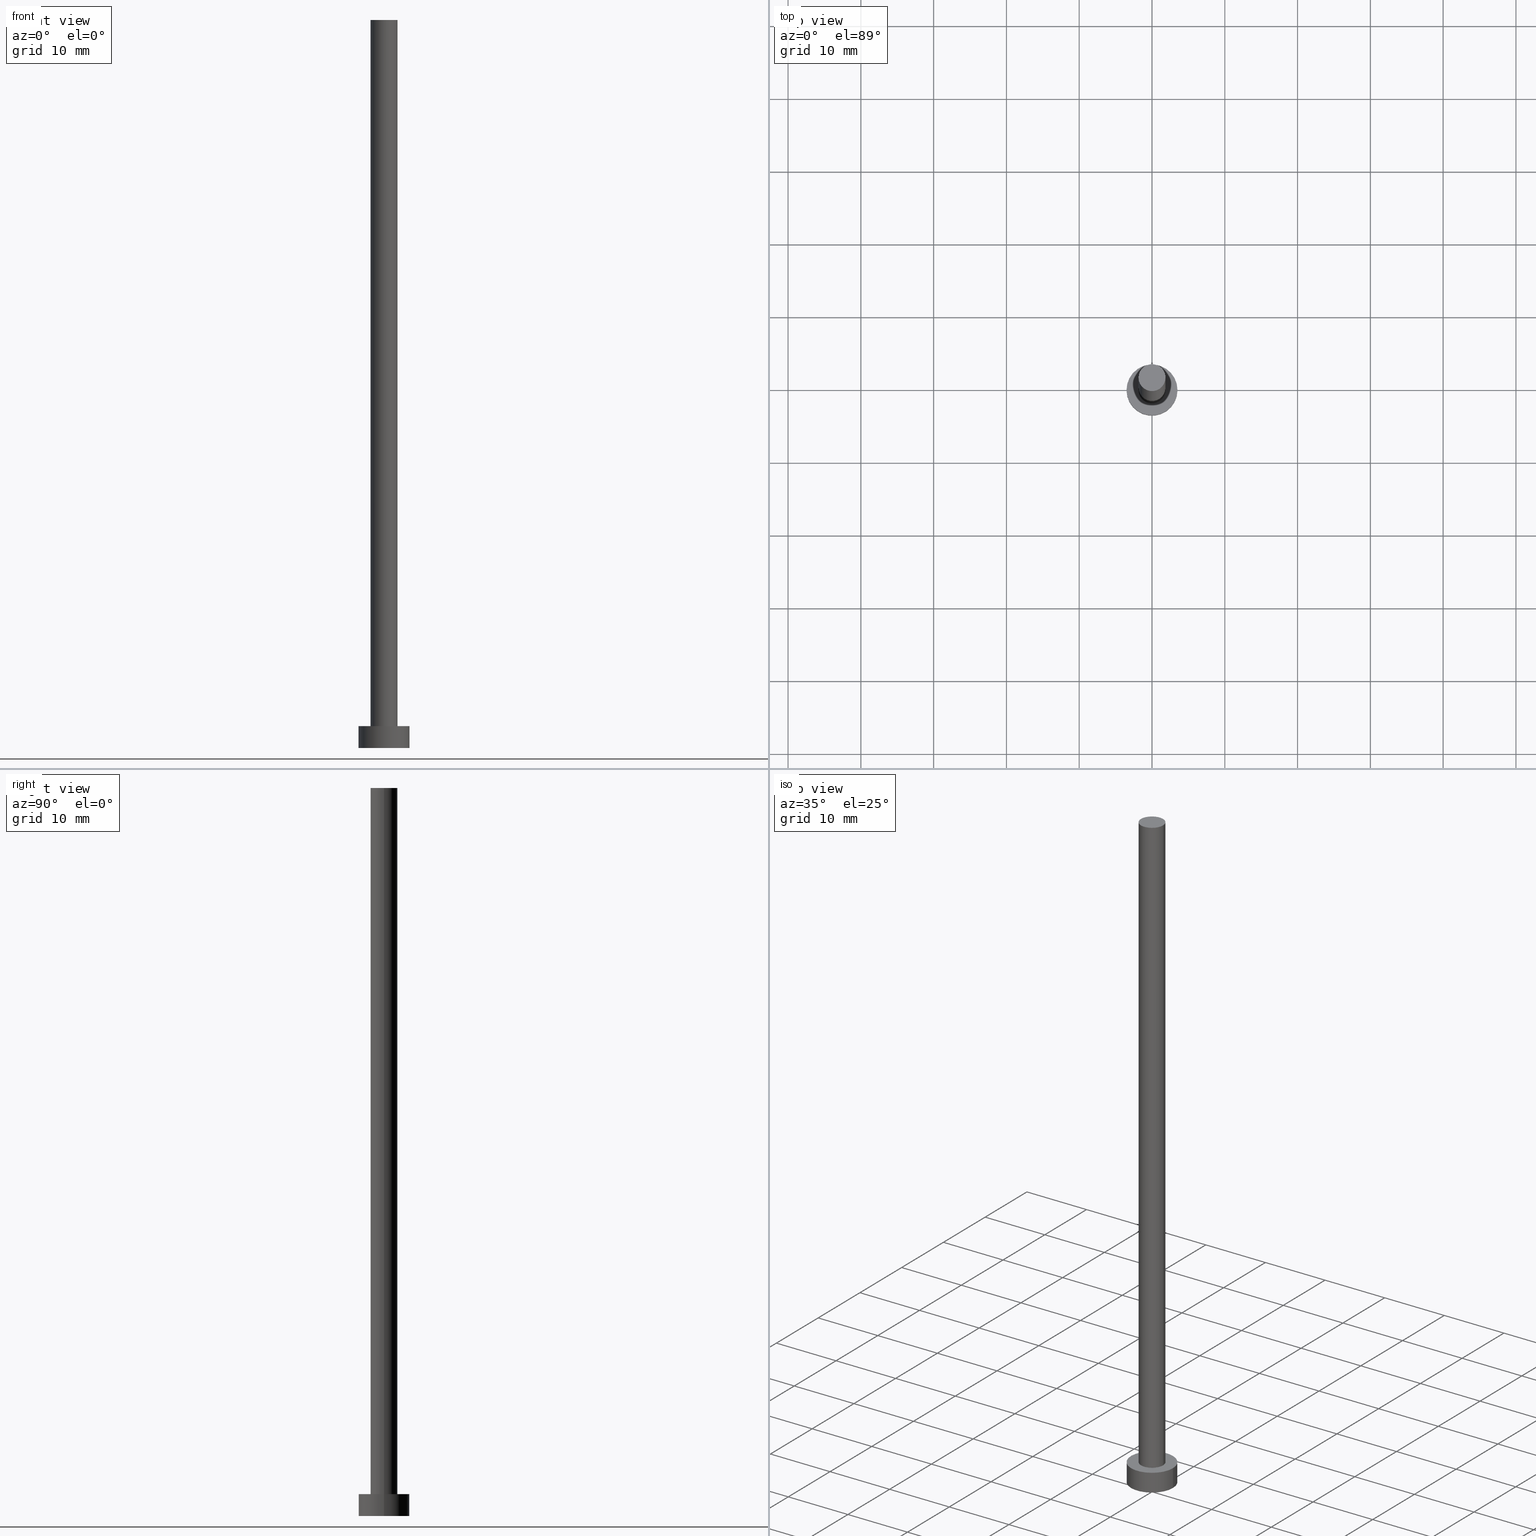
[diagram: canonical four-view strip — front | top / right | iso, engineering-drawing reading convention]
A machine part, canonical four-view strip (front | top / right | iso — engineering-drawing reading convention). The complete STEP part file that produces these views, byte-faithful:
ISO-10303-21;
HEADER;
FILE_DESCRIPTION (( 'STEP AP203' ),
    '1' );
FILE_NAME ('6613.STEP',
    '2026-02-11T15:51:28',
    ( '' ),
    ( '' ),
    'SwSTEP 2.0',
    'SolidWorks 2019',
    '' );
FILE_SCHEMA (( 'CONFIG_CONTROL_DESIGN' ));
ENDSEC;

DATA;
#1 = FACE_OUTER_BOUND ( 'NONE', #10, .T. ) ;
#2 = DIRECTION ( 'NONE',  ( 0.000000000000000000, 0.000000000000000000, 1.000000000000000000 ) ) ;
#3 = CIRCLE ( 'NONE', #46, 3.500000000000000444 ) ;
#4 = AXIS2_PLACEMENT_3D ( 'NONE', #226, #20, #150 ) ;
#5 = DIRECTION ( 'NONE',  ( 1.000000000000000000, 0.000000000000000000, -0.000000000000000000 ) ) ;
#6 = DIRECTION ( 'NONE',  ( -0.000000000000000000, -0.000000000000000000, -1.000000000000000000 ) ) ;
#7 = ORIENTED_EDGE ( 'NONE', *, *, #45, .T. ) ;
#8 = DIRECTION ( 'NONE',  ( 0.000000000000000000, 0.000000000000000000, 1.000000000000000000 ) ) ;
#9 = DIRECTION ( 'NONE',  ( 1.000000000000000000, 0.000000000000000000, 0.000000000000000000 ) ) ;
#10 = EDGE_LOOP ( 'NONE', ( #146, #230 ) ) ;
#11 = CIRCLE ( 'NONE', #82, 1.850000000000000089 ) ;
#12 = EDGE_CURVE ( 'NONE', #87, #62, #11, .T. ) ;
#13 = APPROVAL_PERSON_ORGANIZATION ( #220, #36, #241 ) ;
#14 = APPLICATION_PROTOCOL_DEFINITION ( 'international standard', 'config_control_design', 1994, #207 ) ;
#15 = DIRECTION ( 'NONE',  ( -0.000000000000000000, -0.000000000000000000, -1.000000000000000000 ) ) ;
#16 = DIRECTION ( 'NONE',  ( 0.000000000000000000, 0.000000000000000000, 1.000000000000000000 ) ) ;
#17 = CC_DESIGN_SECURITY_CLASSIFICATION ( #213, ( #228 ) ) ;
#18 = APPROVAL_STATUS ( 'not_yet_approved' ) ;
#19 = EDGE_CURVE ( 'NONE', #105, #112, #28, .T. ) ;
#20 = DIRECTION ( 'NONE',  ( -0.000000000000000000, -0.000000000000000000, -1.000000000000000000 ) ) ;
#21 = PERSON_AND_ORGANIZATION ( #161, #196 ) ;
#22 = PRODUCT_DEFINITION_SHAPE ( 'NONE', 'NONE',  #246 ) ;
#23 = CARTESIAN_POINT ( 'NONE',  ( 0.000000000000000000, 0.000000000000000000, 3.000000000000000000 ) ) ;
#24 = UNCERTAINTY_MEASURE_WITH_UNIT (LENGTH_MEASURE( 1.000000000000000082E-05 ), #215, 'distance_accuracy_value', 'NONE');
#25 = EDGE_LOOP ( 'NONE', ( #29, #114, #102, #149 ) ) ;
#26 = DIRECTION ( 'NONE',  ( 0.000000000000000000, 0.000000000000000000, 1.000000000000000000 ) ) ;
#27 = ORIENTED_EDGE ( 'NONE', *, *, #38, .F. ) ;
#28 = CIRCLE ( 'NONE', #221, 1.850000000000000089 ) ;
#29 = ORIENTED_EDGE ( 'NONE', *, *, #45, .F. ) ;
#30 = CIRCLE ( 'NONE', #69, 3.500000000000000444 ) ;
#31 = EDGE_LOOP ( 'NONE', ( #129, #187, #91, #164 ) ) ;
#32 = AXIS2_PLACEMENT_3D ( 'NONE', #66, #186, #169 ) ;
#33 = CYLINDRICAL_SURFACE ( 'NONE', #139, 1.850000000000000089 ) ;
#34 = PERSON_AND_ORGANIZATION ( #161, #196 ) ;
#35 = LINE ( 'NONE', #225, #115 ) ;
#36 = APPROVAL ( #18, 'NEUR�EN�' ) ;
#37 = COORDINATED_UNIVERSAL_TIME_OFFSET ( 1, 0, .AHEAD. ) ;
#38 = EDGE_CURVE ( 'NONE', #151, #44, #93, .T. ) ;
#39 = AXIS2_PLACEMENT_3D ( 'NONE', #48, #103, #205 ) ;
#40 = CYLINDRICAL_SURFACE ( 'NONE', #4, 3.500000000000000444 ) ;
#41 = DATE_AND_TIME ( #247, #214 ) ;
#42 = DIRECTION ( 'NONE',  ( 1.000000000000000000, 0.000000000000000000, 0.000000000000000000 ) ) ;
#43 = DIRECTION ( 'NONE',  ( -0.000000000000000000, -0.000000000000000000, -1.000000000000000000 ) ) ;
#44 = VERTEX_POINT ( 'NONE', #67 ) ;
#45 = EDGE_CURVE ( 'NONE', #151, #244, #60, .T. ) ;
#46 = AXIS2_PLACEMENT_3D ( 'NONE', #136, #96, #95 ) ;
#47 = CARTESIAN_POINT ( 'NONE',  ( 0.000000000000000000, 0.000000000000000000, 3.000000000000000000 ) ) ;
#48 = CARTESIAN_POINT ( 'NONE',  ( 0.000000000000000000, 0.000000000000000000, 3.000000000000000000 ) ) ;
#49 = ORIENTED_EDGE ( 'NONE', *, *, #19, .F. ) ;
#50 = EDGE_LOOP ( 'NONE', ( #88, #49 ) ) ;
#51 = AXIS2_PLACEMENT_3D ( 'NONE', #200, #16, #157 ) ;
#52 = ADVANCED_FACE ( 'NONE', ( #165 ), #40, .T. ) ;
#53 = CARTESIAN_POINT ( 'NONE',  ( 0.000000000000000000, 0.000000000000000000, 0.000000000000000000 ) ) ;
#54 = APPROVAL_PERSON_ORGANIZATION ( #140, #188, #73 ) ;
#55 = CLOSED_SHELL ( 'NONE', ( #131, #70, #52, #109, #234, #142, #191 ) ) ;
#56 = CARTESIAN_POINT ( 'NONE',  ( -3.500000000000000444, 0.000000000000000000, 3.000000000000000000 ) ) ;
#57 = CC_DESIGN_DATE_AND_TIME_ASSIGNMENT ( #120, #222, ( #213 ) ) ;
#58 = LOCAL_TIME ( 16, 51, 28.00000000000000000, #83 ) ;
#59 = PERSON_AND_ORGANIZATION ( #161, #196 ) ;
#60 = LINE ( 'NONE', #144, #179 ) ;
#61 = LOCAL_TIME ( 16, 51, 28.00000000000000000, #252 ) ;
#62 = VERTEX_POINT ( 'NONE', #122 ) ;
#63 = APPROVAL_DATE_TIME ( #41, #188 ) ;
#64 = ORIENTED_EDGE ( 'NONE', *, *, #133, .F. ) ;
#65 = DIRECTION ( 'NONE',  ( -0.000000000000000000, -0.000000000000000000, -1.000000000000000000 ) ) ;
#66 = CARTESIAN_POINT ( 'NONE',  ( 0.000000000000000000, 0.000000000000000000, 3.000000000000000000 ) ) ;
#67 = CARTESIAN_POINT ( 'NONE',  ( -3.500000000000000444, 0.000000000000000000, 3.000000000000000000 ) ) ;
#68 = ORIENTED_EDGE ( 'NONE', *, *, #194, .T. ) ;
#69 = AXIS2_PLACEMENT_3D ( 'NONE', #47, #168, #229 ) ;
#70 = ADVANCED_FACE ( 'NONE', ( #206 ), #126, .T. ) ;
#71 = ORIENTED_EDGE ( 'NONE', *, *, #12, .T. ) ;
#72 = MANIFOLD_SOLID_BREP ( 'P�idat vysunut�m3', #55 ) ;
#73 = APPROVAL_ROLE ( '' ) ;
#74 = DATE_AND_TIME ( #248, #176 ) ;
#75 = CARTESIAN_POINT ( 'NONE',  ( -3.500000000000000444, 0.000000000000000000, 0.000000000000000000 ) ) ;
#76 = AXIS2_PLACEMENT_3D ( 'NONE', #110, #185, #174 ) ;
#77 = CARTESIAN_POINT ( 'NONE',  ( 0.000000000000000000, 0.000000000000000000, 100.0000000000000000 ) ) ;
#78 = PERSON_AND_ORGANIZATION_ROLE ( 'creator' ) ;
#79 = CC_DESIGN_PERSON_AND_ORGANIZATION_ASSIGNMENT ( #97, #78, ( #228 ) ) ;
#80 = DATE_AND_TIME ( #98, #204 ) ;
#81 = CC_DESIGN_PERSON_AND_ORGANIZATION_ASSIGNMENT ( #132, #198, ( #124 ) ) ;
#82 = AXIS2_PLACEMENT_3D ( 'NONE', #116, #193, #190 ) ;
#83 = COORDINATED_UNIVERSAL_TIME_OFFSET ( 1, 0, .AHEAD. ) ;
#84 = PLANE ( 'NONE',  #171 ) ;
#85 = CARTESIAN_POINT ( 'NONE',  ( -1.850000000000000089, 0.000000000000000000, 3.000000000000000000 ) ) ;
#86 = CARTESIAN_POINT ( 'NONE',  ( 3.500000000000000444, 4.286263797015737088E-16, 0.000000000000000000 ) ) ;
#87 = VERTEX_POINT ( 'NONE', #208 ) ;
#88 = ORIENTED_EDGE ( 'NONE', *, *, #104, .F. ) ;
#89 = CARTESIAN_POINT ( 'NONE',  ( 0.000000000000000000, 0.000000000000000000, 3.000000000000000000 ) ) ;
#90 = CC_DESIGN_APPROVAL ( #36, ( #228 ) ) ;
#91 = ORIENTED_EDGE ( 'NONE', *, *, #19, .T. ) ;
#92 = AXIS2_PLACEMENT_3D ( 'NONE', #209, #26, #5 ) ;
#93 = CIRCLE ( 'NONE', #32, 3.500000000000000444 ) ;
#94 =( NAMED_UNIT ( * ) PLANE_ANGLE_UNIT ( ) SI_UNIT ( $, .RADIAN. ) );
#95 = DIRECTION ( 'NONE',  ( 1.000000000000000000, 0.000000000000000000, 0.000000000000000000 ) ) ;
#96 = DIRECTION ( 'NONE',  ( 0.000000000000000000, 0.000000000000000000, 1.000000000000000000 ) ) ;
#97 = PERSON_AND_ORGANIZATION ( #161, #196 ) ;
#98 = CALENDAR_DATE ( 2026, 11, 2 ) ;
#99 = PERSON_AND_ORGANIZATION_ROLE ( 'classification_officer' ) ;
#100 = SECURITY_CLASSIFICATION_LEVEL ( 'unclassified' ) ;
#101 = CARTESIAN_POINT ( 'NONE',  ( 1.850000000000000089, 2.265596578422602607E-16, 3.000000000000000000 ) ) ;
#102 = ORIENTED_EDGE ( 'NONE', *, *, #117, .T. ) ;
#103 = DIRECTION ( 'NONE',  ( 0.000000000000000000, 0.000000000000000000, 1.000000000000000000 ) ) ;
#104 = EDGE_CURVE ( 'NONE', #112, #105, #178, .T. ) ;
#105 = VERTEX_POINT ( 'NONE', #101 ) ;
#106 = PLANE ( 'NONE',  #92 ) ;
#107 = CC_DESIGN_APPROVAL ( #218, ( #246 ) ) ;
#108 = ORIENTED_EDGE ( 'NONE', *, *, #104, .T. ) ;
#109 = ADVANCED_FACE ( 'NONE', ( #180, #1 ), #84, .T. ) ;
#110 = CARTESIAN_POINT ( 'NONE',  ( 0.000000000000000000, 0.000000000000000000, 0.000000000000000000 ) ) ;
#111 = DIRECTION ( 'NONE',  ( 0.000000000000000000, 0.000000000000000000, 1.000000000000000000 ) ) ;
#112 = VERTEX_POINT ( 'NONE', #85 ) ;
#113 = FACE_OUTER_BOUND ( 'NONE', #181, .T. ) ;
#114 = ORIENTED_EDGE ( 'NONE', *, *, #223, .F. ) ;
#115 = VECTOR ( 'NONE', #65, 1000.000000000000000 ) ;
#116 = CARTESIAN_POINT ( 'NONE',  ( 0.000000000000000000, 0.000000000000000000, 100.0000000000000000 ) ) ;
#117 = EDGE_CURVE ( 'NONE', #44, #166, #243, .T. ) ;
#118 = CC_DESIGN_PERSON_AND_ORGANIZATION_ASSIGNMENT ( #59, #141, ( #228 ) ) ;
#119 = DIRECTION ( 'NONE',  ( -1.000000000000000000, 0.000000000000000000, 0.000000000000000000 ) ) ;
#120 = DATE_AND_TIME ( #159, #58 ) ;
#121 =( GEOMETRIC_REPRESENTATION_CONTEXT ( 3 ) GLOBAL_UNCERTAINTY_ASSIGNED_CONTEXT ( ( #24 ) ) GLOBAL_UNIT_ASSIGNED_CONTEXT ( ( #215, #94, #250 ) ) REPRESENTATION_CONTEXT ( 'NONE', 'WORKASPACE' ) );
#122 = CARTESIAN_POINT ( 'NONE',  ( 1.850000000000000089, 2.265596578422602607E-16, 100.0000000000000000 ) ) ;
#123 = CC_DESIGN_PERSON_AND_ORGANIZATION_ASSIGNMENT ( #236, #175, ( #246 ) ) ;
#124 = PRODUCT ( '6613', '6613', '', ( #134 ) ) ;
#125 = CC_DESIGN_PERSON_AND_ORGANIZATION_ASSIGNMENT ( #21, #99, ( #213 ) ) ;
#126 = CYLINDRICAL_SURFACE ( 'NONE', #155, 3.500000000000000444 ) ;
#127 = DIRECTION ( 'NONE',  ( -1.000000000000000000, 0.000000000000000000, 0.000000000000000000 ) ) ;
#128 = CARTESIAN_POINT ( 'NONE',  ( 0.000000000000000000, 0.000000000000000000, 100.0000000000000000 ) ) ;
#129 = ORIENTED_EDGE ( 'NONE', *, *, #227, .F. ) ;
#130 = CIRCLE ( 'NONE', #76, 3.500000000000000444 ) ;
#131 = ADVANCED_FACE ( 'NONE', ( #135 ), #216, .T. ) ;
#132 = PERSON_AND_ORGANIZATION ( #161, #196 ) ;
#133 = EDGE_CURVE ( 'NONE', #244, #166, #3, .T. ) ;
#134 = MECHANICAL_CONTEXT ( 'NONE', #217, 'mechanical' ) ;
#135 = FACE_OUTER_BOUND ( 'NONE', #31, .T. ) ;
#136 = CARTESIAN_POINT ( 'NONE',  ( 0.000000000000000000, 0.000000000000000000, 0.000000000000000000 ) ) ;
#137 = ADVANCED_BREP_SHAPE_REPRESENTATION ( '6613', ( #72, #158 ), #121 ) ;
#138 = DATE_AND_TIME ( #154, #61 ) ;
#139 = AXIS2_PLACEMENT_3D ( 'NONE', #77, #177, #253 ) ;
#140 = PERSON_AND_ORGANIZATION ( #161, #196 ) ;
#141 = PERSON_AND_ORGANIZATION_ROLE ( 'design_supplier' ) ;
#142 = ADVANCED_FACE ( 'NONE', ( #239 ), #33, .T. ) ;
#143 = DESIGN_CONTEXT ( 'detailed design', #207, 'design' ) ;
#144 = CARTESIAN_POINT ( 'NONE',  ( 3.500000000000000444, 4.286263797015737088E-16, 3.000000000000000000 ) ) ;
#145 = ORIENTED_EDGE ( 'NONE', *, *, #227, .T. ) ;
#146 = ORIENTED_EDGE ( 'NONE', *, *, #223, .T. ) ;
#147 = LINE ( 'NONE', #183, #237 ) ;
#148 = ORIENTED_EDGE ( 'NONE', *, *, #233, .F. ) ;
#149 = ORIENTED_EDGE ( 'NONE', *, *, #249, .T. ) ;
#150 = DIRECTION ( 'NONE',  ( -1.000000000000000000, 0.000000000000000000, 0.000000000000000000 ) ) ;
#151 = VERTEX_POINT ( 'NONE', #255 ) ;
#152 = APPROVAL_DATE_TIME ( #74, #218 ) ;
#153 = DIRECTION ( 'NONE',  ( 1.000000000000000000, 0.000000000000000000, 0.000000000000000000 ) ) ;
#154 = CALENDAR_DATE ( 2026, 11, 2 ) ;
#155 = AXIS2_PLACEMENT_3D ( 'NONE', #23, #43, #127 ) ;
#156 = PLANE ( 'NONE',  #51 ) ;
#157 = DIRECTION ( 'NONE',  ( 1.000000000000000000, 0.000000000000000000, -0.000000000000000000 ) ) ;
#158 = AXIS2_PLACEMENT_3D ( 'NONE', #53, #238, #153 ) ;
#159 = CALENDAR_DATE ( 2026, 11, 2 ) ;
#160 = CARTESIAN_POINT ( 'NONE',  ( 0.000000000000000000, 0.000000000000000000, 3.000000000000000000 ) ) ;
#161 = PERSON ( 'NEUR�EN�', 'NEUR�EN�', 'NEUR�EN�', ('NEUR�EN�'), ('NEUR�EN�'), ('NEUR�EN�') ) ;
#162 = VECTOR ( 'NONE', #199, 1000.000000000000000 ) ;
#163 = DIRECTION ( 'NONE',  ( 1.000000000000000000, 0.000000000000000000, -0.000000000000000000 ) ) ;
#164 = ORIENTED_EDGE ( 'NONE', *, *, #194, .F. ) ;
#165 = FACE_OUTER_BOUND ( 'NONE', #25, .T. ) ;
#166 = VERTEX_POINT ( 'NONE', #75 ) ;
#167 = SHAPE_DEFINITION_REPRESENTATION ( #22, #137 ) ;
#168 = DIRECTION ( 'NONE',  ( 0.000000000000000000, 0.000000000000000000, 1.000000000000000000 ) ) ;
#169 = DIRECTION ( 'NONE',  ( 1.000000000000000000, 0.000000000000000000, 0.000000000000000000 ) ) ;
#170 = ORIENTED_EDGE ( 'NONE', *, *, #249, .F. ) ;
#171 = AXIS2_PLACEMENT_3D ( 'NONE', #160, #2, #163 ) ;
#172 = COORDINATED_UNIVERSAL_TIME_OFFSET ( 1, 0, .AHEAD. ) ;
#173 = APPROVAL_ROLE ( '' ) ;
#174 = DIRECTION ( 'NONE',  ( 1.000000000000000000, 0.000000000000000000, 0.000000000000000000 ) ) ;
#175 = PERSON_AND_ORGANIZATION_ROLE ( 'creator' ) ;
#176 = LOCAL_TIME ( 16, 51, 28.00000000000000000, #197 ) ;
#177 = DIRECTION ( 'NONE',  ( -0.000000000000000000, -0.000000000000000000, -1.000000000000000000 ) ) ;
#178 = CIRCLE ( 'NONE', #39, 1.850000000000000089 ) ;
#179 = VECTOR ( 'NONE', #6, 1000.000000000000000 ) ;
#180 = FACE_BOUND ( 'NONE', #50, .T. ) ;
#181 = EDGE_LOOP ( 'NONE', ( #170, #64 ) ) ;
#182 = AXIS2_PLACEMENT_3D ( 'NONE', #128, #8, #42 ) ;
#183 = CARTESIAN_POINT ( 'NONE',  ( 1.850000000000000089, 2.265596578422602607E-16, 100.0000000000000000 ) ) ;
#184 = ORIENTED_EDGE ( 'NONE', *, *, #117, .F. ) ;
#185 = DIRECTION ( 'NONE',  ( 0.000000000000000000, 0.000000000000000000, 1.000000000000000000 ) ) ;
#186 = DIRECTION ( 'NONE',  ( 0.000000000000000000, 0.000000000000000000, 1.000000000000000000 ) ) ;
#187 = ORIENTED_EDGE ( 'NONE', *, *, #233, .T. ) ;
#188 = APPROVAL ( #224, 'NEUR�EN�' ) ;
#189 = ORIENTED_EDGE ( 'NONE', *, *, #133, .T. ) ;
#190 = DIRECTION ( 'NONE',  ( 1.000000000000000000, 0.000000000000000000, 0.000000000000000000 ) ) ;
#191 = ADVANCED_FACE ( 'NONE', ( #219 ), #156, .T. ) ;
#192 = CIRCLE ( 'NONE', #182, 1.850000000000000089 ) ;
#193 = DIRECTION ( 'NONE',  ( 0.000000000000000000, 0.000000000000000000, 1.000000000000000000 ) ) ;
#194 = EDGE_CURVE ( 'NONE', #87, #112, #35, .T. ) ;
#195 = APPROVAL_STATUS ( 'not_yet_approved' ) ;
#196 = ORGANIZATION ( 'NEUR�EN�', 'NEUR�EN�', '' ) ;
#197 = COORDINATED_UNIVERSAL_TIME_OFFSET ( 1, 0, .AHEAD. ) ;
#198 = PERSON_AND_ORGANIZATION_ROLE ( 'design_owner' ) ;
#199 = DIRECTION ( 'NONE',  ( -0.000000000000000000, -0.000000000000000000, -1.000000000000000000 ) ) ;
#200 = CARTESIAN_POINT ( 'NONE',  ( 0.000000000000000000, 0.000000000000000000, 100.0000000000000000 ) ) ;
#201 = CARTESIAN_POINT ( 'NONE',  ( 0.000000000000000000, 0.000000000000000000, 100.0000000000000000 ) ) ;
#202 = APPROVAL_DATE_TIME ( #80, #36 ) ;
#203 = PRODUCT_RELATED_PRODUCT_CATEGORY ( 'detail', '', ( #124 ) ) ;
#204 = LOCAL_TIME ( 16, 51, 28.00000000000000000, #37 ) ;
#205 = DIRECTION ( 'NONE',  ( 1.000000000000000000, 0.000000000000000000, 0.000000000000000000 ) ) ;
#206 = FACE_OUTER_BOUND ( 'NONE', #231, .T. ) ;
#207 = APPLICATION_CONTEXT ( 'configuration controlled 3d designs of mechanical parts and assemblies' ) ;
#208 = CARTESIAN_POINT ( 'NONE',  ( -1.850000000000000089, 0.000000000000000000, 100.0000000000000000 ) ) ;
#209 = CARTESIAN_POINT ( 'NONE',  ( 0.000000000000000000, 0.000000000000000000, 0.000000000000000000 ) ) ;
#210 = DIRECTION ( 'NONE',  ( -0.000000000000000000, -0.000000000000000000, -1.000000000000000000 ) ) ;
#211 = EDGE_LOOP ( 'NONE', ( #71, #145 ) ) ;
#212 = ORIENTED_EDGE ( 'NONE', *, *, #12, .F. ) ;
#213 = SECURITY_CLASSIFICATION ( '', '', #100 ) ;
#214 = LOCAL_TIME ( 16, 51, 28.00000000000000000, #172 ) ;
#215 =( LENGTH_UNIT ( ) NAMED_UNIT ( * ) SI_UNIT ( .MILLI., .METRE. ) );
#216 = CYLINDRICAL_SURFACE ( 'NONE', #254, 1.850000000000000089 ) ;
#217 = APPLICATION_CONTEXT ( 'configuration controlled 3d designs of mechanical parts and assemblies' ) ;
#218 = APPROVAL ( #195, 'NEUR�EN�' ) ;
#219 = FACE_OUTER_BOUND ( 'NONE', #211, .T. ) ;
#220 = PERSON_AND_ORGANIZATION ( #161, #196 ) ;
#221 = AXIS2_PLACEMENT_3D ( 'NONE', #89, #111, #9 ) ;
#222 = DATE_TIME_ROLE ( 'classification_date' ) ;
#223 = EDGE_CURVE ( 'NONE', #44, #151, #30, .T. ) ;
#224 = APPROVAL_STATUS ( 'not_yet_approved' ) ;
#225 = CARTESIAN_POINT ( 'NONE',  ( -1.850000000000000089, 0.000000000000000000, 100.0000000000000000 ) ) ;
#226 = CARTESIAN_POINT ( 'NONE',  ( 0.000000000000000000, 0.000000000000000000, 3.000000000000000000 ) ) ;
#227 = EDGE_CURVE ( 'NONE', #62, #87, #192, .T. ) ;
#228 = PRODUCT_DEFINITION_FORMATION_WITH_SPECIFIED_SOURCE ( 'LIBOVOLN�', '', #124, .NOT_KNOWN. ) ;
#229 = DIRECTION ( 'NONE',  ( 1.000000000000000000, 0.000000000000000000, 0.000000000000000000 ) ) ;
#230 = ORIENTED_EDGE ( 'NONE', *, *, #38, .T. ) ;
#231 = EDGE_LOOP ( 'NONE', ( #27, #7, #189, #184 ) ) ;
#232 = APPROVAL_PERSON_ORGANIZATION ( #34, #218, #173 ) ;
#233 = EDGE_CURVE ( 'NONE', #62, #105, #147, .T. ) ;
#234 = ADVANCED_FACE ( 'NONE', ( #113 ), #106, .F. ) ;
#235 = CC_DESIGN_DATE_AND_TIME_ASSIGNMENT ( #138, #240, ( #246 ) ) ;
#236 = PERSON_AND_ORGANIZATION ( #161, #196 ) ;
#237 = VECTOR ( 'NONE', #210, 1000.000000000000000 ) ;
#238 = DIRECTION ( 'NONE',  ( 0.000000000000000000, 0.000000000000000000, 1.000000000000000000 ) ) ;
#239 = FACE_OUTER_BOUND ( 'NONE', #245, .T. ) ;
#240 = DATE_TIME_ROLE ( 'creation_date' ) ;
#241 = APPROVAL_ROLE ( '' ) ;
#242 = CC_DESIGN_APPROVAL ( #188, ( #213 ) ) ;
#243 = LINE ( 'NONE', #56, #162 ) ;
#244 = VERTEX_POINT ( 'NONE', #86 ) ;
#245 = EDGE_LOOP ( 'NONE', ( #148, #212, #68, #108 ) ) ;
#246 = PRODUCT_DEFINITION ( 'NEZN�M�', '', #228, #143 ) ;
#247 = CALENDAR_DATE ( 2026, 11, 2 ) ;
#248 = CALENDAR_DATE ( 2026, 11, 2 ) ;
#249 = EDGE_CURVE ( 'NONE', #166, #244, #130, .T. ) ;
#250 =( NAMED_UNIT ( * ) SI_UNIT ( $, .STERADIAN. ) SOLID_ANGLE_UNIT ( ) );
#251 = APPLICATION_PROTOCOL_DEFINITION ( 'international standard', 'config_control_design', 1994, #217 ) ;
#252 = COORDINATED_UNIVERSAL_TIME_OFFSET ( 1, 0, .AHEAD. ) ;
#253 = DIRECTION ( 'NONE',  ( -1.000000000000000000, 0.000000000000000000, 0.000000000000000000 ) ) ;
#254 = AXIS2_PLACEMENT_3D ( 'NONE', #201, #15, #119 ) ;
#255 = CARTESIAN_POINT ( 'NONE',  ( 3.500000000000000444, 4.286263797015737088E-16, 3.000000000000000000 ) ) ;
ENDSEC;
END-ISO-10303-21;
